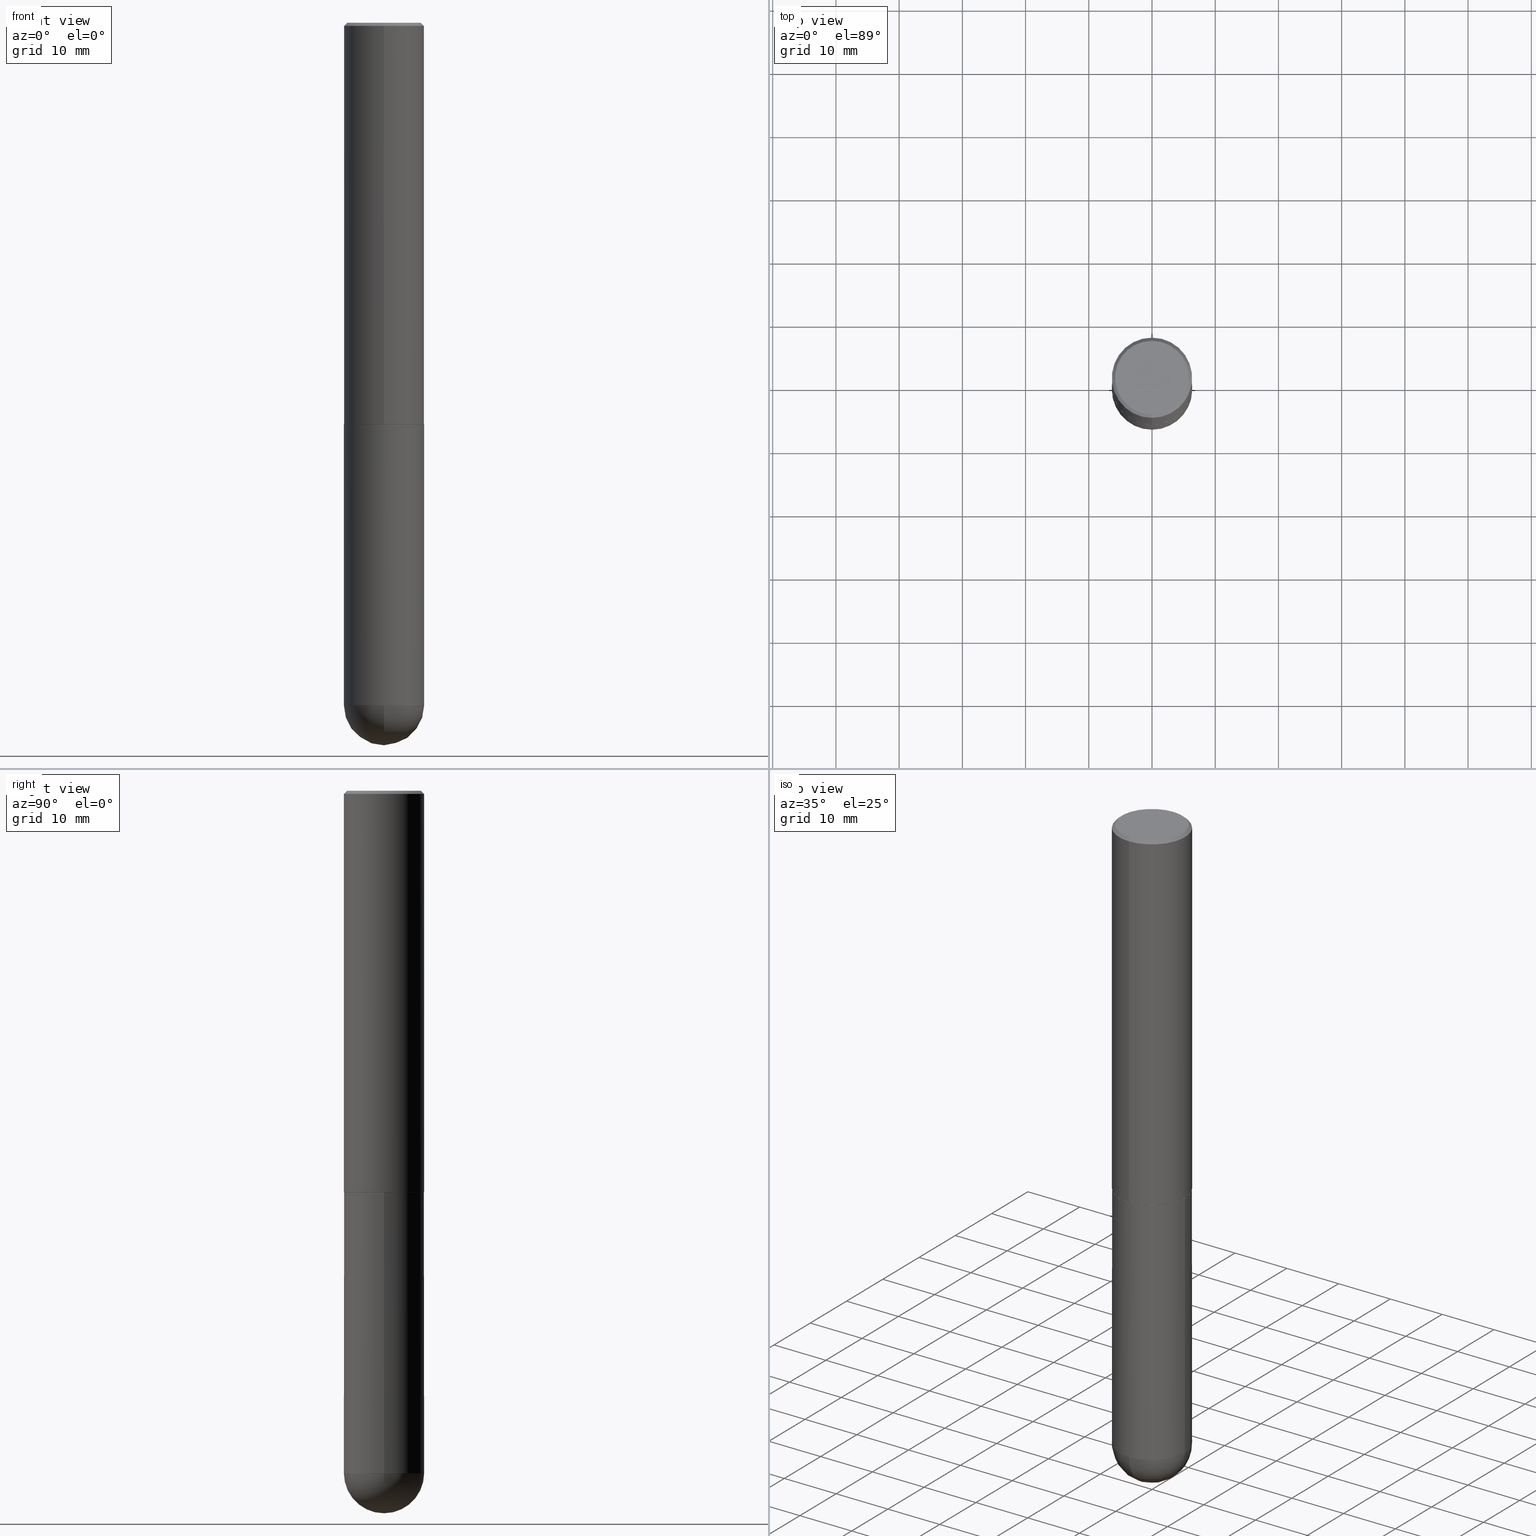
[diagram: canonical four-view strip — front | top / right | iso, engineering-drawing reading convention]
A machine part, canonical four-view strip (front | top / right | iso — engineering-drawing reading convention). The complete STEP part file that produces these views, byte-faithful:
ISO-10303-21;
HEADER;
FILE_DESCRIPTION (( 'STEP AP203' ),
    '1' );
FILE_NAME ('33112.STEP',
    '2024-02-21T17:49:45',
    ( '' ),
    ( '' ),
    'SwSTEP 2.0',
    'SolidWorks 2023',
    '' );
FILE_SCHEMA (( 'CONFIG_CONTROL_DESIGN' ));
ENDSEC;

DATA;
#1 = ORIENTED_EDGE ( 'NONE', *, *, #311, .T. ) ;
#2 = AXIS2_PLACEMENT_3D ( 'NONE', #359, #234, #107 ) ;
#3 = AXIS2_PLACEMENT_3D ( 'NONE', #59, #315, #372 ) ;
#4 = PERSON_AND_ORGANIZATION ( #374, #295 ) ;
#5 = VERTEX_POINT ( 'NONE', #385 ) ;
#6 = PLANE ( 'NONE',  #289 ) ;
#7 = VERTEX_POINT ( 'NONE', #198 ) ;
#8 = SPHERICAL_SURFACE ( 'NONE', #216, 0.2500000000000001110 ) ;
#9 = DIRECTION ( 'NONE',  ( -4.937700262165728178E-15, -0.7071067811867141062, 0.7071067811863809283 ) ) ;
#10 = CYLINDRICAL_SURFACE ( 'NONE', #334, 0.2500000000000000000 ) ;
#11 = DIRECTION ( 'NONE',  ( 1.000000000000000000, -6.982962677686266711E-15, 0.000000000000000000 ) ) ;
#12 = CLOSED_SHELL ( 'NONE', ( #30, #287, #45, #342, #411, #368, #181, #20 ) ) ;
#13 = ADVANCED_FACE ( 'NONE', ( #228 ), #8, .T. ) ;
#14 = CONICAL_SURFACE ( 'NONE', #307, 0.2489999999999999991, 0.7853981633976873100 ) ;
#15 = CARTESIAN_POINT ( 'NONE',  ( 4.890314126197295628E-31, -6.983855545372664265E-17, -0.02000000000000005593 ) ) ;
#16 = DIRECTION ( 'NONE',  ( 1.000000000000000000, -6.982962677686266711E-15, 4.876176775795935793E-29 ) ) ;
#17 = CARTESIAN_POINT ( 'NONE',  ( -1.738757706743818935E-15, -0.2490000000000087421, -2.499999999999999112 ) ) ;
#18 = ORIENTED_EDGE ( 'NONE', *, *, #168, .F. ) ;
#19 = CIRCLE ( 'NONE', #257, 0.2500000000000000000 ) ;
#20 = ADVANCED_FACE ( 'NONE', ( #35 ), #6, .F. ) ;
#21 = CARTESIAN_POINT ( 'NONE',  ( 1.006212264837294429E-28, -1.531297805822341912E-14, -4.250000000000000000 ) ) ;
#22 = SPHERICAL_SURFACE ( 'NONE', #69, 0.2500000000000001110 ) ;
#23 = DIRECTION ( 'NONE',  ( -6.982962677686265922E-15, -1.000000000000000000, 4.370956789862816416E-15 ) ) ;
#24 = EDGE_CURVE ( 'NONE', #341, #5, #90, .T. ) ;
#25 = CIRCLE ( 'NONE', #178, 0.2500000000000000000 ) ;
#26 = AXIS2_PLACEMENT_3D ( 'NONE', #277, #215, #344 ) ;
#27 = CARTESIAN_POINT ( 'NONE',  ( -1.715124499442882299E-15, -0.2500000000000000555, -0.01999999999999918163 ) ) ;
#28 = PERSON_AND_ORGANIZATION ( #374, #295 ) ;
#29 = CARTESIAN_POINT ( 'NONE',  ( 1.776356839400251254E-15, 0.2500000000000001110, -8.729819431715811349E-16 ) ) ;
#30 = ADVANCED_FACE ( 'NONE', ( #170 ), #192, .T. ) ;
#31 = ORIENTED_EDGE ( 'NONE', *, *, #123, .T. ) ;
#32 = CIRCLE ( 'NONE', #205, 0.2500000000000001110 ) ;
#33 = DATE_AND_TIME ( #284, #179 ) ;
#34 = VERTEX_POINT ( 'NONE', #63 ) ;
#35 = FACE_OUTER_BOUND ( 'NONE', #276, .T. ) ;
#36 = APPLICATION_CONTEXT ( 'configuration controlled 3d designs of mechanical parts and assemblies' ) ;
#37 = COORDINATED_UNIVERSAL_TIME_OFFSET ( 5, 0, .BEHIND. ) ;
#38 = EDGE_LOOP ( 'NONE', ( #248, #321, #1, #382 ) ) ;
#39 = EDGE_CURVE ( 'NONE', #129, #184, #196, .T. ) ;
#40 = AXIS2_PLACEMENT_3D ( 'NONE', #176, #271, #299 ) ;
#41 = CARTESIAN_POINT ( 'NONE',  ( 1.006212264837294429E-28, -1.531297805822341912E-14, -4.250000000000000000 ) ) ;
#42 = AXIS2_PLACEMENT_3D ( 'NONE', #156, #247, #188 ) ;
#43 = DATE_AND_TIME ( #109, #371 ) ;
#44 = CARTESIAN_POINT ( 'NONE',  ( -1.715124499442882299E-15, -0.2500000000000000555, -0.01999999999999918163 ) ) ;
#45 = ADVANCED_FACE ( 'NONE', ( #207 ), #300, .T. ) ;
#46 = DIRECTION ( 'NONE',  ( -2.445157063098640632E-29, 3.491927772686322567E-15, 1.000000000000000000 ) ) ;
#47 = DIRECTION ( 'NONE',  ( -1.000000000000000000, 6.982962677686265922E-15, -4.876176775795935793E-29 ) ) ;
#48 = CIRCLE ( 'NONE', #238, 0.2500000000000000000 ) ;
#49 = DIRECTION ( 'NONE',  ( 1.000000000000000000, -6.982962677686270655E-15, 0.000000000000000000 ) ) ;
#50 = DIRECTION ( 'NONE',  ( 0.000000000000000000, 0.000000000000000000, 1.000000000000000000 ) ) ;
#51 = CARTESIAN_POINT ( 'NONE',  ( 0.000000000000000000, 0.000000000000000000, 0.000000000000000000 ) ) ;
#52 = CC_DESIGN_DATE_AND_TIME_ASSIGNMENT ( #33, #130, ( #200 ) ) ;
#53 = DIRECTION ( 'NONE',  ( 2.445157063098640632E-29, -3.491927772686322567E-15, -1.000000000000000000 ) ) ;
#54 = ORIENTED_EDGE ( 'NONE', *, *, #252, .F. ) ;
#55 = CARTESIAN_POINT ( 'NONE',  ( 1.039324242628683054E-28, -1.483879569008337040E-14, -4.250000000000000000 ) ) ;
#56 = VERTEX_POINT ( 'NONE', #44 ) ;
#57 = DIRECTION ( 'NONE',  ( -1.000000000000000000, 6.982962677686265922E-15, -4.883557194083113462E-29 ) ) ;
#58 = EDGE_LOOP ( 'NONE', ( #245, #403, #157, #89 ) ) ;
#59 = CARTESIAN_POINT ( 'NONE',  ( 6.112892657746601580E-29, -8.729819431715806024E-15, -2.500000000000000000 ) ) ;
#60 = ORIENTED_EDGE ( 'NONE', *, *, #204, .T. ) ;
#61 = VECTOR ( 'NONE', #150, 39.37007874015748143 ) ;
#62 =( NAMED_UNIT ( * ) PLANE_ANGLE_UNIT ( ) SI_UNIT ( $, .RADIAN. ) );
#63 = CARTESIAN_POINT ( 'NONE',  ( 0.2500000000000000000, -1.047444401652943162E-14, -2.500000000000000000 ) ) ;
#64 = COORDINATED_UNIVERSAL_TIME_OFFSET ( 5, 0, .BEHIND. ) ;
#65 = ORIENTED_EDGE ( 'NONE', *, *, #297, .T. ) ;
#66 = CC_DESIGN_PERSON_AND_ORGANIZATION_ASSIGNMENT ( #101, #325, ( #210 ) ) ;
#67 = SHAPE_DEFINITION_REPRESENTATION ( #393, #133 ) ;
#68 = ORIENTED_EDGE ( 'NONE', *, *, #364, .F. ) ;
#69 = AXIS2_PLACEMENT_3D ( 'NONE', #21, #57, #190 ) ;
#70 = CIRCLE ( 'NONE', #97, 0.2299999999999997602 ) ;
#71 = PERSON_AND_ORGANIZATION ( #374, #295 ) ;
#72 = ORIENTED_EDGE ( 'NONE', *, *, #398, .T. ) ;
#73 = APPROVAL_DATE_TIME ( #135, #381 ) ;
#74 = ORIENTED_EDGE ( 'NONE', *, *, #297, .F. ) ;
#75 = EDGE_CURVE ( 'NONE', #7, #129, #77, .T. ) ;
#76 = CARTESIAN_POINT ( 'NONE',  ( 0.2500000000000000000, -1.745740669421566678E-15, 1.219044193948983948E-29 ) ) ;
#77 = LINE ( 'NONE', #365, #61 ) ;
#78 = EDGE_CURVE ( 'NONE', #98, #377, #369, .T. ) ;
#79 = DIRECTION ( 'NONE',  ( 1.000000000000000000, -6.982962677686266711E-15, 4.876176775795935793E-29 ) ) ;
#80 = CARTESIAN_POINT ( 'NONE',  ( 0.000000000000000000, 0.000000000000000000, 0.000000000000000000 ) ) ;
#81 = PLANE ( 'NONE',  #349 ) ;
#82 = APPROVAL_DATE_TIME ( #43, #208 ) ;
#83 = CARTESIAN_POINT ( 'NONE',  ( 1.039324242628683054E-28, -1.483879569008337040E-14, -4.250000000000000000 ) ) ;
#84 = CIRCLE ( 'NONE', #40, 0.2500000000000000000 ) ;
#85 = CIRCLE ( 'NONE', #3, 0.2489999999999999991 ) ;
#86 = FACE_OUTER_BOUND ( 'NONE', #58, .T. ) ;
#87 = DIRECTION ( 'NONE',  ( -2.445157063098640632E-29, 3.491927772686322567E-15, 1.000000000000000000 ) ) ;
#88 = EDGE_LOOP ( 'NONE', ( #389, #72, #322, #375 ) ) ;
#89 = ORIENTED_EDGE ( 'NONE', *, *, #104, .F. ) ;
#90 = CIRCLE ( 'NONE', #172, 0.2299999999999997602 ) ;
#91 = AXIS2_PLACEMENT_3D ( 'NONE', #83, #335, #49 ) ;
#92 = ADVANCED_FACE ( 'NONE', ( #272 ), #10, .T. ) ;
#93 = DIRECTION ( 'NONE',  ( 1.000000000000000000, -6.982962677686266711E-15, 0.000000000000000000 ) ) ;
#94 = DIRECTION ( 'NONE',  ( 1.000000000000000000, -6.982962677686270655E-15, 0.000000000000000000 ) ) ;
#95 = APPROVAL_STATUS ( 'not_yet_approved' ) ;
#96 = AXIS2_PLACEMENT_3D ( 'NONE', #240, #303, #298 ) ;
#97 = AXIS2_PLACEMENT_3D ( 'NONE', #308, #87, #124 ) ;
#98 = VERTEX_POINT ( 'NONE', #400 ) ;
#99 = ADVANCED_FACE ( 'NONE', ( #180 ), #117, .T. ) ;
#100 = DIRECTION ( 'NONE',  ( -2.445157063098640632E-29, 3.491927772686322173E-15, 1.000000000000000000 ) ) ;
#101 = PERSON_AND_ORGANIZATION ( #374, #295 ) ;
#102 = DIRECTION ( 'NONE',  ( -6.982962677686265922E-15, -1.000000000000000000, 3.491927772686322567E-15 ) ) ;
#103 = CC_DESIGN_SECURITY_CLASSIFICATION ( #200, ( #210 ) ) ;
#104 = EDGE_CURVE ( 'NONE', #184, #56, #25, .T. ) ;
#105 = APPROVAL_STATUS ( 'not_yet_approved' ) ;
#106 = ORIENTED_EDGE ( 'NONE', *, *, #110, .T. ) ;
#107 = DIRECTION ( 'NONE',  ( -6.982962677686265133E-15, -1.000000000000000000, 4.388510833195603583E-15 ) ) ;
#108 = DIRECTION ( 'NONE',  ( -6.982962677686265922E-15, -1.000000000000000000, 3.491927772686322173E-15 ) ) ;
#109 = CALENDAR_DATE ( 2024, 21, 2 ) ;
#110 = EDGE_CURVE ( 'NONE', #326, #201, #152, .T. ) ;
#111 = CARTESIAN_POINT ( 'NONE',  ( 4.890314126197295628E-31, -6.983855545372664265E-17, -0.02000000000000005593 ) ) ;
#112 = FACE_OUTER_BOUND ( 'NONE', #387, .T. ) ;
#113 = APPLICATION_PROTOCOL_DEFINITION ( 'international standard', 'config_control_design', 1994, #340 ) ;
#114 = CARTESIAN_POINT ( 'NONE',  ( -1.776356839400148307E-15, -0.2500000000000151545, -4.249999999999999112 ) ) ;
#115 = PERSON_AND_ORGANIZATION_ROLE ( 'design_owner' ) ;
#116 = EDGE_CURVE ( 'NONE', #262, #7, #407, .T. ) ;
#117 = CYLINDRICAL_SURFACE ( 'NONE', #159, 0.2500000000000000000 ) ;
#118 = CIRCLE ( 'NONE', #127, 0.2500000000000002776 ) ;
#119 = CARTESIAN_POINT ( 'NONE',  ( 6.110447500683504072E-29, -8.726327503943120838E-15, -2.499000000000000110 ) ) ;
#120 = ORIENTED_EDGE ( 'NONE', *, *, #252, .T. ) ;
#121 = DIRECTION ( 'NONE',  ( 1.000000000000000000, -6.982962677686270655E-15, 0.000000000000000000 ) ) ;
#122 = ORIENTED_EDGE ( 'NONE', *, *, #246, .F. ) ;
#123 = EDGE_CURVE ( 'NONE', #356, #34, #397, .T. ) ;
#124 = DIRECTION ( 'NONE',  ( -6.982962677686265922E-15, -1.000000000000000000, 3.491927772686322567E-15 ) ) ;
#125 = EDGE_LOOP ( 'NONE', ( #350, #139, #54, #309 ) ) ;
#126 = AXIS2_PLACEMENT_3D ( 'NONE', #15, #145, #237 ) ;
#127 = AXIS2_PLACEMENT_3D ( 'NONE', #275, #219, #128 ) ;
#128 = DIRECTION ( 'NONE',  ( -6.982962677686265922E-15, -1.000000000000000000, 4.370956789862816416E-15 ) ) ;
#129 = VERTEX_POINT ( 'NONE', #327 ) ;
#130 = DATE_TIME_ROLE ( 'classification_date' ) ;
#131 = CC_DESIGN_PERSON_AND_ORGANIZATION_ASSIGNMENT ( #71, #169, ( #200 ) ) ;
#132 = ORIENTED_EDGE ( 'NONE', *, *, #214, .T. ) ;
#133 = ADVANCED_BREP_SHAPE_REPRESENTATION ( '33112', ( #260, #254, #396 ), #363 ) ;
#134 = CONICAL_SURFACE ( 'NONE', #282, 0.2500000000000000000, 0.7853981633974476129 ) ;
#135 = DATE_AND_TIME ( #232, #146 ) ;
#136 = ORIENTED_EDGE ( 'NONE', *, *, #78, .T. ) ;
#137 = CALENDAR_DATE ( 2024, 21, 2 ) ;
#138 = DIRECTION ( 'NONE',  ( 2.445157063098640352E-29, -3.491927772686322173E-15, -1.000000000000000000 ) ) ;
#139 = ORIENTED_EDGE ( 'NONE', *, *, #175, .T. ) ;
#140 = EDGE_LOOP ( 'NONE', ( #263, #323 ) ) ;
#141 = PRODUCT ( '33112', '33112', '', ( #147 ) ) ;
#142 = DIRECTION ( 'NONE',  ( -2.445157063098640352E-29, 3.491927772686322173E-15, 1.000000000000000000 ) ) ;
#143 = CARTESIAN_POINT ( 'NONE',  ( -1.738757706743818935E-15, -0.2490000000000087421, -2.499999999999999112 ) ) ;
#144 = EDGE_CURVE ( 'NONE', #262, #314, #177, .T. ) ;
#145 = DIRECTION ( 'NONE',  ( 2.445157063098640632E-29, -3.491927772686322567E-15, -1.000000000000000000 ) ) ;
#146 = LOCAL_TIME ( 12, 49, 45.00000000000000000, #195 ) ;
#147 = MECHANICAL_CONTEXT ( 'NONE', #36, 'mechanical' ) ;
#148 = DIRECTION ( 'NONE',  ( -2.445157063098640632E-29, 3.491927772686322567E-15, 1.000000000000000000 ) ) ;
#149 = CC_DESIGN_PERSON_AND_ORGANIZATION_ASSIGNMENT ( #333, #244, ( #280 ) ) ;
#150 = DIRECTION ( 'NONE',  ( 5.024295867789263036E-15, 0.7071067811867189912, 0.7071067811863760433 ) ) ;
#151 = DIRECTION ( 'NONE',  ( -2.445157063098640632E-29, 3.491927772686322173E-15, 1.000000000000000000 ) ) ;
#152 = CIRCLE ( 'NONE', #96, 0.2500000000000001110 ) ;
#153 = ORIENTED_EDGE ( 'NONE', *, *, #116, .T. ) ;
#154 = CIRCLE ( 'NONE', #218, 0.2500000000000002776 ) ;
#155 = DIRECTION ( 'NONE',  ( 6.982962677686265922E-15, 1.000000000000000000, -3.500180241882337261E-15 ) ) ;
#156 = CARTESIAN_POINT ( 'NONE',  ( 0.000000000000000000, 0.000000000000000000, 0.000000000000000000 ) ) ;
#157 = ORIENTED_EDGE ( 'NONE', *, *, #337, .T. ) ;
#158 = DIRECTION ( 'NONE',  ( -2.445157063098640632E-29, 3.491927772686322567E-15, 1.000000000000000000 ) ) ;
#159 = AXIS2_PLACEMENT_3D ( 'NONE', #362, #331, #16 ) ;
#160 = CIRCLE ( 'NONE', #329, 0.2500000000000000000 ) ;
#161 = CARTESIAN_POINT ( 'NONE',  ( -1.745740669421567467E-15, -0.2500000000000001110, 8.729819431715811349E-16 ) ) ;
#162 = EDGE_CURVE ( 'NONE', #186, #98, #84, .T. ) ;
#163 = DIRECTION ( 'NONE',  ( 6.982962677686265922E-15, 1.000000000000000000, -3.491927772686322173E-15 ) ) ;
#164 = ORIENTED_EDGE ( 'NONE', *, *, #116, .F. ) ;
#165 = VECTOR ( 'NONE', #100, 39.37007874015748143 ) ;
#166 = APPROVAL_PERSON_ORGANIZATION ( #28, #381, #227 ) ;
#167 = DIRECTION ( 'NONE',  ( -1.000000000000000000, 6.982962677686265922E-15, -4.883557194083113462E-29 ) ) ;
#168 = EDGE_CURVE ( 'NONE', #377, #34, #256, .T. ) ;
#169 = PERSON_AND_ORGANIZATION_ROLE ( 'classification_officer' ) ;
#170 = FACE_OUTER_BOUND ( 'NONE', #250, .T. ) ;
#171 = EDGE_LOOP ( 'NONE', ( #202, #217, #122, #406 ) ) ;
#172 = AXIS2_PLACEMENT_3D ( 'NONE', #266, #391, #102 ) ;
#173 = CIRCLE ( 'NONE', #26, 0.2500000000000000000 ) ;
#174 = DIRECTION ( 'NONE',  ( -2.445468806185136877E-29, 3.491481338843145188E-15, 1.000000000000000000 ) ) ;
#175 = EDGE_CURVE ( 'NONE', #326, #186, #32, .T. ) ;
#176 = CARTESIAN_POINT ( 'NONE',  ( 1.039324242628683054E-28, -1.483879569008337040E-14, -4.250000000000000000 ) ) ;
#177 = LINE ( 'NONE', #143, #230 ) ;
#178 = AXIS2_PLACEMENT_3D ( 'NONE', #111, #148, #399 ) ;
#179 = LOCAL_TIME ( 12, 49, 45.00000000000000000, #37 ) ;
#180 = FACE_OUTER_BOUND ( 'NONE', #191, .T. ) ;
#181 = ADVANCED_FACE ( 'NONE', ( #112 ), #242, .F. ) ;
#182 = LINE ( 'NONE', #27, #269 ) ;
#183 = DIRECTION ( 'NONE',  ( -2.445157063098640632E-29, 3.491927772686322567E-15, 1.000000000000000000 ) ) ;
#184 = VERTEX_POINT ( 'NONE', #267 ) ;
#185 = DIRECTION ( 'NONE',  ( 4.937700262164543309E-15, 0.7071067811865444641, -0.7071067811865503483 ) ) ;
#186 = VERTEX_POINT ( 'NONE', #302 ) ;
#187 = CARTESIAN_POINT ( 'NONE',  ( 1.068417942853397052E-28, -1.617054030794486372E-14, -4.500000000000000888 ) ) ;
#188 = DIRECTION ( 'NONE',  ( -6.982962677686266711E-15, -1.000000000000000000, 3.491927772686322962E-15 ) ) ;
#189 = ORIENTED_EDGE ( 'NONE', *, *, #78, .F. ) ;
#190 = DIRECTION ( 'NONE',  ( 6.982962677686265922E-15, 1.000000000000000000, -4.370956789862818783E-15 ) ) ;
#191 = EDGE_LOOP ( 'NONE', ( #352, #136, #312, #286, #120 ) ) ;
#192 = CONICAL_SURFACE ( 'NONE', #2, 0.2489999999999999991, 0.7853981633976873100 ) ;
#193 = CC_DESIGN_DATE_AND_TIME_ASSIGNMENT ( #261, #358, ( #280 ) ) ;
#194 =( CONVERSION_BASED_UNIT ( 'INCH', #222 ) LENGTH_UNIT ( ) NAMED_UNIT ( #409 ) );
#195 = COORDINATED_UNIVERSAL_TIME_OFFSET ( 5, 0, .BEHIND. ) ;
#196 = LINE ( 'NONE', #29, #165 ) ;
#197 = PERSON_AND_ORGANIZATION ( #374, #295 ) ;
#198 = CARTESIAN_POINT ( 'NONE',  ( 1.772804125721511886E-15, 0.2489999999999912561, -2.500000000000001332 ) ) ;
#199 = ADVANCED_FACE ( 'NONE', ( #239 ), #81, .F. ) ;
#200 = SECURITY_CLASSIFICATION ( '', '', #351 ) ;
#201 = VERTEX_POINT ( 'NONE', #114 ) ;
#202 = ORIENTED_EDGE ( 'NONE', *, *, #364, .T. ) ;
#203 = DIRECTION ( 'NONE',  ( -2.445468806185136877E-29, 3.491481338843145188E-15, 1.000000000000000000 ) ) ;
#204 = EDGE_CURVE ( 'NONE', #201, #356, #223, .T. ) ;
#205 = AXIS2_PLACEMENT_3D ( 'NONE', #41, #268, #394 ) ;
#206 = CARTESIAN_POINT ( 'NONE',  ( 0.000000000000000000, 0.000000000000000000, 0.000000000000000000 ) ) ;
#207 = FACE_OUTER_BOUND ( 'NONE', #225, .T. ) ;
#208 = APPROVAL ( #241, 'UNSPECIFIED' ) ;
#209 = CARTESIAN_POINT ( 'NONE',  ( 1.745740669421627617E-15, 0.2499999999999912570, -2.500000000000001332 ) ) ;
#210 = PRODUCT_DEFINITION_FORMATION_WITH_SPECIFIED_SOURCE ( 'ANY', '', #141, .NOT_KNOWN. ) ;
#211 = CARTESIAN_POINT ( 'NONE',  ( 6.113672015462842613E-29, -8.728703347107864943E-15, -2.500000000000000000 ) ) ;
#212 = CYLINDRICAL_SURFACE ( 'NONE', #390, 0.2500000000000001110 ) ;
#213 = FACE_OUTER_BOUND ( 'NONE', #279, .T. ) ;
#214 = EDGE_CURVE ( 'NONE', #5, #56, #182, .T. ) ;
#215 = DIRECTION ( 'NONE',  ( -2.445157063098640632E-29, 3.491927772686322567E-15, 1.000000000000000000 ) ) ;
#216 = AXIS2_PLACEMENT_3D ( 'NONE', #255, #167, #291 ) ;
#217 = ORIENTED_EDGE ( 'NONE', *, *, #39, .T. ) ;
#218 = AXIS2_PLACEMENT_3D ( 'NONE', #119, #158, #23 ) ;
#219 = DIRECTION ( 'NONE',  ( -2.445157063098640632E-29, 3.491927772686322567E-15, 1.000000000000000000 ) ) ;
#220 = ORIENTED_EDGE ( 'NONE', *, *, #175, .F. ) ;
#221 = CARTESIAN_POINT ( 'NONE',  ( 4.890314126197295628E-31, -6.983855545372664265E-17, -0.02000000000000005593 ) ) ;
#222 = LENGTH_MEASURE_WITH_UNIT ( LENGTH_MEASURE( 0.02539999999999999897 ), #317 );
#223 = CIRCLE ( 'NONE', #91, 0.2500000000000000000 ) ;
#224 = CALENDAR_DATE ( 2024, 21, 2 ) ;
#225 = EDGE_LOOP ( 'NONE', ( #74, #132, #292, #229 ) ) ;
#226 = PRODUCT_RELATED_PRODUCT_CATEGORY ( 'detail', '', ( #141 ) ) ;
#227 = APPROVAL_ROLE ( '' ) ;
#228 = FACE_OUTER_BOUND ( 'NONE', #125, .T. ) ;
#229 = ORIENTED_EDGE ( 'NONE', *, *, #311, .F. ) ;
#230 = VECTOR ( 'NONE', #9, 39.37007874015748143 ) ;
#231 = CC_DESIGN_APPROVAL ( #404, ( #200 ) ) ;
#232 = CALENDAR_DATE ( 2024, 21, 2 ) ;
#233 = ORIENTED_EDGE ( 'NONE', *, *, #354, .T. ) ;
#234 = DIRECTION ( 'NONE',  ( -2.445157063098640632E-29, 3.491927772686322567E-15, 1.000000000000000000 ) ) ;
#235 = ADVANCED_FACE ( 'NONE', ( #213 ), #22, .T. ) ;
#236 = APPLICATION_PROTOCOL_DEFINITION ( 'international standard', 'config_control_design', 1994, #36 ) ;
#237 = DIRECTION ( 'NONE',  ( 6.982962677686265922E-15, 1.000000000000000000, -3.500180241882337261E-15 ) ) ;
#238 = AXIS2_PLACEMENT_3D ( 'NONE', #55, #373, #94 ) ;
#239 = FACE_OUTER_BOUND ( 'NONE', #140, .T. ) ;
#240 = CARTESIAN_POINT ( 'NONE',  ( 1.006212264837294429E-28, -1.531297805822341912E-14, -4.250000000000000000 ) ) ;
#241 = APPROVAL_STATUS ( 'not_yet_approved' ) ;
#242 = PLANE ( 'NONE',  #401 ) ;
#243 = FACE_OUTER_BOUND ( 'NONE', #38, .T. ) ;
#244 = PERSON_AND_ORGANIZATION_ROLE ( 'creator' ) ;
#245 = ORIENTED_EDGE ( 'NONE', *, *, #39, .F. ) ;
#246 = EDGE_CURVE ( 'NONE', #56, #184, #173, .T. ) ;
#247 = DIRECTION ( 'NONE',  ( -2.445157063098640632E-29, 3.491927772686322567E-15, 1.000000000000000000 ) ) ;
#248 = ORIENTED_EDGE ( 'NONE', *, *, #214, .F. ) ;
#249 = LINE ( 'NONE', #338, #316 ) ;
#250 = EDGE_LOOP ( 'NONE', ( #153, #383, #68, #259 ) ) ;
#251 = AXIS2_PLACEMENT_3D ( 'NONE', #211, #366, #11 ) ;
#252 = EDGE_CURVE ( 'NONE', #356, #186, #48, .T. ) ;
#253 = FACE_OUTER_BOUND ( 'NONE', #88, .T. ) ;
#254 = MANIFOLD_SOLID_BREP ( 'Body-Move/Copy2[2]', #12 ) ;
#255 = CARTESIAN_POINT ( 'NONE',  ( 1.006212264837294429E-28, -1.531297805822341912E-14, -4.250000000000000000 ) ) ;
#256 = CIRCLE ( 'NONE', #251, 0.2500000000000000000 ) ;
#257 = AXIS2_PLACEMENT_3D ( 'NONE', #410, #402, #121 ) ;
#258 = DATE_AND_TIME ( #137, #265 ) ;
#259 = ORIENTED_EDGE ( 'NONE', *, *, #144, .F. ) ;
#260 = MANIFOLD_SOLID_BREP ( 'Body-Move/Copy2[1]', #273 ) ;
#261 = DATE_AND_TIME ( #224, #343 ) ;
#262 = VERTEX_POINT ( 'NONE', #17 ) ;
#263 = ORIENTED_EDGE ( 'NONE', *, *, #320, .T. ) ;
#264 = AXIS2_PLACEMENT_3D ( 'NONE', #330, #46, #360 ) ;
#265 = LOCAL_TIME ( 12, 49, 45.00000000000000000, #64 ) ;
#266 = CARTESIAN_POINT ( 'NONE',  ( -5.012358744754175369E-45, 7.158147413767250712E-31, 2.049912793087505445E-16 ) ) ;
#267 = CARTESIAN_POINT ( 'NONE',  ( 1.745740669421566875E-15, 0.2499999999999999167, -0.02000000000000093023 ) ) ;
#268 = DIRECTION ( 'NONE',  ( 1.000000000000000000, -6.982962677686265922E-15, 4.883557194083112340E-29 ) ) ;
#269 = VECTOR ( 'NONE', #278, 39.37007874015748854 ) ;
#270 = DIRECTION ( 'NONE',  ( -2.445468806185136597E-29, 3.491481338843145583E-15, 1.000000000000000000 ) ) ;
#271 = DIRECTION ( 'NONE',  ( -2.445468806185136597E-29, 3.491481338843145583E-15, 1.000000000000000000 ) ) ;
#272 = FACE_OUTER_BOUND ( 'NONE', #319, .T. ) ;
#273 = CLOSED_SHELL ( 'NONE', ( #99, #235, #13, #199, #92 ) ) ;
#274 = VECTOR ( 'NONE', #151, 39.37007874015748143 ) ;
#275 = CARTESIAN_POINT ( 'NONE',  ( 6.110447500683504072E-29, -8.726327503943120838E-15, -2.499000000000000110 ) ) ;
#276 = EDGE_LOOP ( 'NONE', ( #345, #65 ) ) ;
#277 = CARTESIAN_POINT ( 'NONE',  ( 4.890314126197295628E-31, -6.983855545372664265E-17, -0.02000000000000005593 ) ) ;
#278 = DIRECTION ( 'NONE',  ( -4.851104656540959542E-15, -0.7071067811865493491, -0.7071067811865454633 ) ) ;
#279 = EDGE_LOOP ( 'NONE', ( #220, #106, #306, #353 ) ) ;
#280 = PRODUCT_DEFINITION ( 'UNKNOWN', '', #210, #370 ) ;
#281 = LINE ( 'NONE', #161, #274 ) ;
#282 = AXIS2_PLACEMENT_3D ( 'NONE', #221, #53, #155 ) ;
#283 = CARTESIAN_POINT ( 'NONE',  ( 1.675911042644703379E-15, 0.2299999999999997602, -5.981521084091028137E-16 ) ) ;
#284 = CALENDAR_DATE ( 2024, 21, 2 ) ;
#285 = APPROVAL_ROLE ( '' ) ;
#286 = ORIENTED_EDGE ( 'NONE', *, *, #123, .F. ) ;
#287 = ADVANCED_FACE ( 'NONE', ( #310 ), #405, .T. ) ;
#288 = ORIENTED_EDGE ( 'NONE', *, *, #398, .F. ) ;
#289 = AXIS2_PLACEMENT_3D ( 'NONE', #294, #138, #163 ) ;
#290 = CC_DESIGN_APPROVAL ( #208, ( #280 ) ) ;
#291 = DIRECTION ( 'NONE',  ( 6.982962677686265922E-15, 1.000000000000000000, -4.370956789862818783E-15 ) ) ;
#292 = ORIENTED_EDGE ( 'NONE', *, *, #246, .T. ) ;
#293 = UNCERTAINTY_MEASURE_WITH_UNIT (LENGTH_MEASURE( 1.000000000000000082E-05 ), #194, 'distance_accuracy_value', 'NONE');
#294 = CARTESIAN_POINT ( 'NONE',  ( 1.606081415867839490E-15, 0.2299999999999997602, -7.006477480634780860E-16 ) ) ;
#295 = ORGANIZATION ( 'UNSPECIFIED', 'UNSPECIFIED', '' ) ;
#296 = CARTESIAN_POINT ( 'NONE',  ( 6.112892657746601580E-29, -8.729819431715806024E-15, -2.500000000000000000 ) ) ;
#297 = EDGE_CURVE ( 'NONE', #5, #341, #70, .T. ) ;
#298 = DIRECTION ( 'NONE',  ( -7.105427357601001859E-15, -1.000000000000000000, 0.000000000000000000 ) ) ;
#299 = DIRECTION ( 'NONE',  ( 1.000000000000000000, -6.982962677686270655E-15, 0.000000000000000000 ) ) ;
#300 = CONICAL_SURFACE ( 'NONE', #126, 0.2500000000000000000, 0.7853981633974476129 ) ;
#301 = APPROVAL_PERSON_ORGANIZATION ( #328, #208, #367 ) ;
#302 = CARTESIAN_POINT ( 'NONE',  ( 1.745740669421669032E-15, 0.2499999999999849842, -4.250000000000001776 ) ) ;
#303 = DIRECTION ( 'NONE',  ( -1.000000000000000000, 7.105427357601001070E-15, -4.926315508542082329E-29 ) ) ;
#304 = CC_DESIGN_PERSON_AND_ORGANIZATION_ASSIGNMENT ( #197, #318, ( #210 ) ) ;
#305 = DIRECTION ( 'NONE',  ( -6.982962677686266711E-15, -1.000000000000000000, 3.491927772686322962E-15 ) ) ;
#306 = ORIENTED_EDGE ( 'NONE', *, *, #354, .F. ) ;
#307 = AXIS2_PLACEMENT_3D ( 'NONE', #412, #346, #379 ) ;
#308 = CARTESIAN_POINT ( 'NONE',  ( -5.012358744754175369E-45, 7.158147413767250712E-31, 2.049912793087505445E-16 ) ) ;
#309 = ORIENTED_EDGE ( 'NONE', *, *, #204, .F. ) ;
#310 = FACE_OUTER_BOUND ( 'NONE', #171, .T. ) ;
#311 = EDGE_CURVE ( 'NONE', #341, #184, #249, .T. ) ;
#312 = ORIENTED_EDGE ( 'NONE', *, *, #320, .F. ) ;
#313 = CARTESIAN_POINT ( 'NONE',  ( -1.745740669421507316E-15, -0.2500000000000089928, -2.498999999999999222 ) ) ;
#314 = VERTEX_POINT ( 'NONE', #313 ) ;
#315 = DIRECTION ( 'NONE',  ( -2.445157063098640632E-29, 3.491927772686322567E-15, 1.000000000000000000 ) ) ;
#316 = VECTOR ( 'NONE', #185, 39.37007874015748854 ) ;
#317 =( LENGTH_UNIT ( ) NAMED_UNIT ( * ) SI_UNIT ( $, .METRE. ) );
#318 = PERSON_AND_ORGANIZATION_ROLE ( 'creator' ) ;
#319 = EDGE_LOOP ( 'NONE', ( #189, #233, #60, #31, #18 ) ) ;
#320 = EDGE_CURVE ( 'NONE', #34, #377, #160, .T. ) ;
#321 = ORIENTED_EDGE ( 'NONE', *, *, #24, .F. ) ;
#322 = ORIENTED_EDGE ( 'NONE', *, *, #144, .T. ) ;
#323 = ORIENTED_EDGE ( 'NONE', *, *, #168, .T. ) ;
#324 = EDGE_CURVE ( 'NONE', #129, #314, #154, .T. ) ;
#325 = PERSON_AND_ORGANIZATION_ROLE ( 'design_supplier' ) ;
#326 = VERTEX_POINT ( 'NONE', #187 ) ;
#327 = CARTESIAN_POINT ( 'NONE',  ( 1.776356839400282414E-15, 0.2499999999999915345, -2.499000000000001442 ) ) ;
#328 = PERSON_AND_ORGANIZATION ( #374, #295 ) ;
#329 = AXIS2_PLACEMENT_3D ( 'NONE', #339, #378, #93 ) ;
#330 = CARTESIAN_POINT ( 'NONE',  ( 6.112892657746601580E-29, -8.729819431715806024E-15, -2.500000000000000000 ) ) ;
#331 = DIRECTION ( 'NONE',  ( -2.445468806185136597E-29, 3.491481338843145583E-15, 1.000000000000000000 ) ) ;
#332 = DIRECTION ( 'NONE',  ( 2.438088387897960049E-29, -3.491481338843145188E-15, -1.000000000000000000 ) ) ;
#333 = PERSON_AND_ORGANIZATION ( #374, #295 ) ;
#334 = AXIS2_PLACEMENT_3D ( 'NONE', #206, #270, #79 ) ;
#335 = DIRECTION ( 'NONE',  ( -2.445468806185136597E-29, 3.491481338843145583E-15, 1.000000000000000000 ) ) ;
#336 = COORDINATED_UNIVERSAL_TIME_OFFSET ( 5, 0, .BEHIND. ) ;
#337 = EDGE_CURVE ( 'NONE', #314, #56, #281, .T. ) ;
#338 = CARTESIAN_POINT ( 'NONE',  ( 1.745740669421566875E-15, 0.2499999999999999167, -0.02000000000000093023 ) ) ;
#339 = CARTESIAN_POINT ( 'NONE',  ( 6.113672015462842613E-29, -8.728703347107864943E-15, -2.500000000000000000 ) ) ;
#340 = APPLICATION_CONTEXT ( 'configuration controlled 3d designs of mechanical parts and assemblies' ) ;
#341 = VERTEX_POINT ( 'NONE', #283 ) ;
#342 = ADVANCED_FACE ( 'NONE', ( #243 ), #134, .T. ) ;
#343 = LOCAL_TIME ( 12, 49, 45.00000000000000000, #388 ) ;
#344 = DIRECTION ( 'NONE',  ( -6.982962677686265922E-15, -1.000000000000000000, 3.500180241882337261E-15 ) ) ;
#345 = ORIENTED_EDGE ( 'NONE', *, *, #24, .T. ) ;
#346 = DIRECTION ( 'NONE',  ( -2.445157063098640632E-29, 3.491927772686322567E-15, 1.000000000000000000 ) ) ;
#347 = CARTESIAN_POINT ( 'NONE',  ( -0.2500000000000000000, -1.000739267919536563E-14, -2.500000000000000000 ) ) ;
#348 = VECTOR ( 'NONE', #203, 39.37007874015748143 ) ;
#349 = AXIS2_PLACEMENT_3D ( 'NONE', #209, #332, #47 ) ;
#350 = ORIENTED_EDGE ( 'NONE', *, *, #110, .F. ) ;
#351 = SECURITY_CLASSIFICATION_LEVEL ( 'unclassified' ) ;
#352 = ORIENTED_EDGE ( 'NONE', *, *, #162, .T. ) ;
#353 = ORIENTED_EDGE ( 'NONE', *, *, #162, .F. ) ;
#354 = EDGE_CURVE ( 'NONE', #98, #201, #19, .T. ) ;
#355 = VECTOR ( 'NONE', #174, 39.37007874015748143 ) ;
#356 = VERTEX_POINT ( 'NONE', #376 ) ;
#357 = CC_DESIGN_APPROVAL ( #381, ( #210 ) ) ;
#358 = DATE_TIME_ROLE ( 'creation_date' ) ;
#359 = CARTESIAN_POINT ( 'NONE',  ( 6.112892657746601580E-29, -8.729819431715806024E-15, -2.500000000000000000 ) ) ;
#360 = DIRECTION ( 'NONE',  ( -6.982962677686265133E-15, -1.000000000000000000, 4.388510833195603583E-15 ) ) ;
#361 = PERSON_AND_ORGANIZATION ( #374, #295 ) ;
#362 = CARTESIAN_POINT ( 'NONE',  ( 0.000000000000000000, 0.000000000000000000, 0.000000000000000000 ) ) ;
#363 =( GEOMETRIC_REPRESENTATION_CONTEXT ( 3 ) GLOBAL_UNCERTAINTY_ASSIGNED_CONTEXT ( ( #293 ) ) GLOBAL_UNIT_ASSIGNED_CONTEXT ( ( #194, #62, #380 ) ) REPRESENTATION_CONTEXT ( 'NONE', 'WORKASPACE' ) );
#364 = EDGE_CURVE ( 'NONE', #314, #129, #118, .T. ) ;
#365 = CARTESIAN_POINT ( 'NONE',  ( 1.769251412042710396E-15, 0.2489999999999912561, -2.500000000000001332 ) ) ;
#366 = DIRECTION ( 'NONE',  ( -2.445468806185136597E-29, 3.491481338843145583E-15, 1.000000000000000000 ) ) ;
#367 = APPROVAL_ROLE ( '' ) ;
#368 = ADVANCED_FACE ( 'NONE', ( #253 ), #14, .T. ) ;
#369 = LINE ( 'NONE', #392, #355 ) ;
#370 = DESIGN_CONTEXT ( 'detailed design', #340, 'design' ) ;
#371 = LOCAL_TIME ( 12, 49, 45.00000000000000000, #336 ) ;
#372 = DIRECTION ( 'NONE',  ( -6.982962677686265133E-15, -1.000000000000000000, 4.388510833195603583E-15 ) ) ;
#373 = DIRECTION ( 'NONE',  ( -2.445468806185136597E-29, 3.491481338843145583E-15, 1.000000000000000000 ) ) ;
#374 = PERSON ( 'UNSPECIFIED', 'UNSPECIFIED', 'UNSPECIFIED', ('UNSPECIFIED'), ('UNSPECIFIED'), ('UNSPECIFIED') ) ;
#375 = ORIENTED_EDGE ( 'NONE', *, *, #324, .F. ) ;
#376 = CARTESIAN_POINT ( 'NONE',  ( 0.2500000000000000000, -1.352949018801718751E-14, -4.250000000000000000 ) ) ;
#377 = VERTEX_POINT ( 'NONE', #347 ) ;
#378 = DIRECTION ( 'NONE',  ( -2.445468806185136597E-29, 3.491481338843145583E-15, 1.000000000000000000 ) ) ;
#379 = DIRECTION ( 'NONE',  ( -6.982962677686265133E-15, -1.000000000000000000, 4.388510833195603583E-15 ) ) ;
#380 =( NAMED_UNIT ( * ) SI_UNIT ( $, .STERADIAN. ) SOLID_ANGLE_UNIT ( ) );
#381 = APPROVAL ( #105, 'UNSPECIFIED' ) ;
#382 = ORIENTED_EDGE ( 'NONE', *, *, #104, .T. ) ;
#383 = ORIENTED_EDGE ( 'NONE', *, *, #75, .T. ) ;
#384 = APPROVAL_DATE_TIME ( #258, #404 ) ;
#385 = CARTESIAN_POINT ( 'NONE',  ( -1.646519519465166376E-15, -0.2299999999999997602, 1.008134667026603804E-15 ) ) ;
#386 = CC_DESIGN_PERSON_AND_ORGANIZATION_ASSIGNMENT ( #361, #115, ( #141 ) ) ;
#387 = EDGE_LOOP ( 'NONE', ( #164, #288 ) ) ;
#388 = COORDINATED_UNIVERSAL_TIME_OFFSET ( 5, 0, .BEHIND. ) ;
#389 = ORIENTED_EDGE ( 'NONE', *, *, #75, .F. ) ;
#390 = AXIS2_PLACEMENT_3D ( 'NONE', #51, #183, #305 ) ;
#391 = DIRECTION ( 'NONE',  ( -2.445157063098640632E-29, 3.491927772686322567E-15, 1.000000000000000000 ) ) ;
#392 = CARTESIAN_POINT ( 'NONE',  ( -0.2500000000000000000, 1.776356839400250465E-15, -1.229733772563726445E-29 ) ) ;
#393 = PRODUCT_DEFINITION_SHAPE ( 'NONE', 'NONE',  #280 ) ;
#394 = DIRECTION ( 'NONE',  ( 6.982962677686266711E-15, 1.000000000000000000, 0.000000000000000000 ) ) ;
#395 = DIRECTION ( 'NONE',  ( 1.000000000000000000, 0.000000000000000000, 0.000000000000000000 ) ) ;
#396 = AXIS2_PLACEMENT_3D ( 'NONE', #80, #50, #395 ) ;
#397 = LINE ( 'NONE', #76, #348 ) ;
#398 = EDGE_CURVE ( 'NONE', #7, #262, #85, .T. ) ;
#399 = DIRECTION ( 'NONE',  ( -6.982962677686265922E-15, -1.000000000000000000, 3.500180241882337261E-15 ) ) ;
#400 = CARTESIAN_POINT ( 'NONE',  ( -0.2500000000000000000, -1.000739267919536879E-14, -4.250000000000000000 ) ) ;
#401 = AXIS2_PLACEMENT_3D ( 'NONE', #296, #142, #108 ) ;
#402 = DIRECTION ( 'NONE',  ( -2.445468806185136597E-29, 3.491481338843145583E-15, 1.000000000000000000 ) ) ;
#403 = ORIENTED_EDGE ( 'NONE', *, *, #324, .T. ) ;
#404 = APPROVAL ( #95, 'UNSPECIFIED' ) ;
#405 = CYLINDRICAL_SURFACE ( 'NONE', #42, 0.2500000000000001110 ) ;
#406 = ORIENTED_EDGE ( 'NONE', *, *, #337, .F. ) ;
#407 = CIRCLE ( 'NONE', #264, 0.2489999999999999991 ) ;
#408 = APPROVAL_PERSON_ORGANIZATION ( #4, #404, #285 ) ;
#409 = DIMENSIONAL_EXPONENTS ( 1.000000000000000000, 0.000000000000000000, 0.000000000000000000, 0.000000000000000000, 0.000000000000000000, 0.000000000000000000, 0.000000000000000000 ) ;
#410 = CARTESIAN_POINT ( 'NONE',  ( 1.039324242628683054E-28, -1.483879569008337040E-14, -4.250000000000000000 ) ) ;
#411 = ADVANCED_FACE ( 'NONE', ( #86 ), #212, .T. ) ;
#412 = CARTESIAN_POINT ( 'NONE',  ( 6.112892657746601580E-29, -8.729819431715806024E-15, -2.500000000000000000 ) ) ;
ENDSEC;
END-ISO-10303-21;
